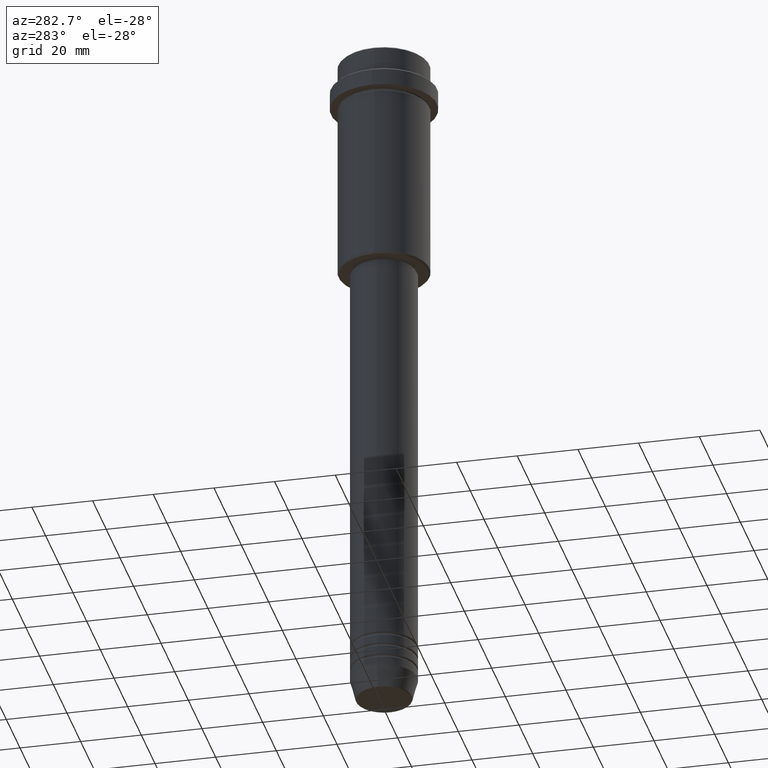
[diagram: clean part render]
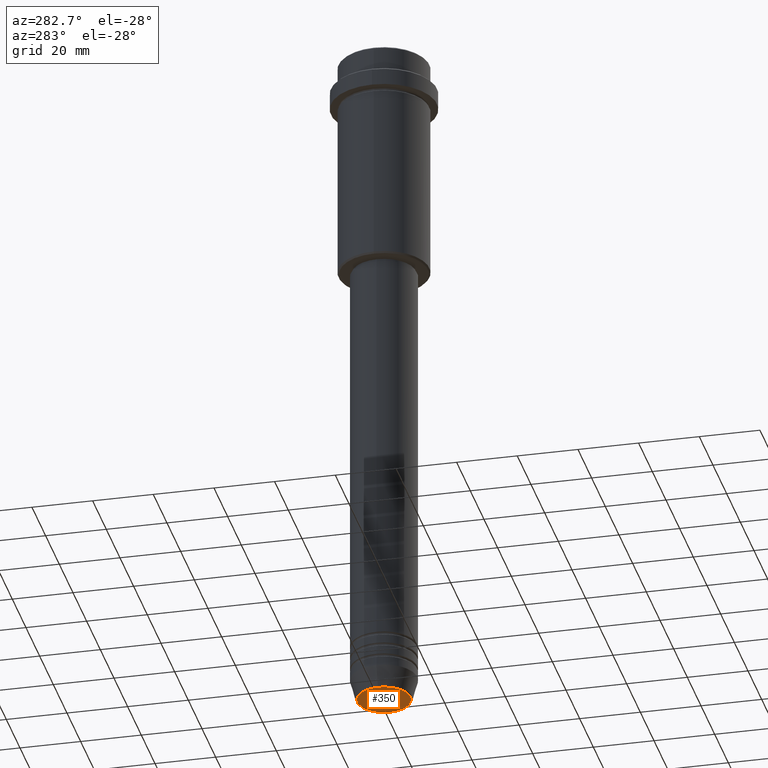
[diagram: same view with one face highlighted and labeled with its STEP entity id]
A machine part, auxiliary view. The second image highlights one B-rep face of the part: STEP entity #350.
In plain terms, the highlighted planar face has unit normal (0, -0, 1).
Its self-contained STEP definition (entity closure, byte-faithful):
#56 = AXIS2_PLACEMENT_3D ( 'NONE', #789, #371, #259 ) ;
#64 = DIRECTION ( 'NONE',  ( 1.000000000000000000, 0.000000000000000000, 0.000000000000000000 ) ) ;
#83 = CARTESIAN_POINT ( 'NONE',  ( 0.000000000000000000, 0.000000000000000000, -229.9999999999999716 ) ) ;
#102 = VERTEX_POINT ( 'NONE', #1118 ) ;
#133 = VERTEX_POINT ( 'NONE', #1383 ) ;
#172 = CARTESIAN_POINT ( 'NONE',  ( 0.000000000000000000, 0.000000000000000000, -229.9999999999999716 ) ) ;
#259 = DIRECTION ( 'NONE',  ( 1.000000000000000000, 0.000000000000000000, 0.000000000000000000 ) ) ;
#290 = DIRECTION ( 'NONE',  ( 0.000000000000000000, 0.000000000000000000, -1.000000000000000000 ) ) ;
#350 = ADVANCED_FACE ( 'NONE', ( #487 ), #358, .F. ) ;
#358 = PLANE ( 'NONE',  #56 ) ;
#371 = DIRECTION ( 'NONE',  ( 0.000000000000000000, -0.000000000000000000, 1.000000000000000000 ) ) ;
#388 = ORIENTED_EDGE ( 'NONE', *, *, #1323, .T. ) ;
#487 = FACE_OUTER_BOUND ( 'NONE', #719, .T. ) ;
#540 = AXIS2_PLACEMENT_3D ( 'NONE', #83, #1295, #1002 ) ;
#617 = AXIS2_PLACEMENT_3D ( 'NONE', #172, #290, #64 ) ;
#719 = EDGE_LOOP ( 'NONE', ( #1361, #388 ) ) ;
#774 = EDGE_CURVE ( 'NONE', #102, #133, #1178, .T. ) ;
#789 = CARTESIAN_POINT ( 'NONE',  ( 0.000000000000000000, 0.000000000000000000, -229.9999999999999716 ) ) ;
#1002 = DIRECTION ( 'NONE',  ( 1.000000000000000000, 0.000000000000000000, 0.000000000000000000 ) ) ;
#1118 = CARTESIAN_POINT ( 'NONE',  ( 8.740692158992656502, 0.000000000000000000, -229.9999999999999716 ) ) ;
#1178 = CIRCLE ( 'NONE', #617, 8.740692158992656502 ) ;
#1217 = CIRCLE ( 'NONE', #540, 8.740692158992656502 ) ;
#1295 = DIRECTION ( 'NONE',  ( 0.000000000000000000, 0.000000000000000000, -1.000000000000000000 ) ) ;
#1323 = EDGE_CURVE ( 'NONE', #133, #102, #1217, .T. ) ;
#1361 = ORIENTED_EDGE ( 'NONE', *, *, #774, .T. ) ;
#1383 = CARTESIAN_POINT ( 'NONE',  ( -8.740692158992656502, 1.099999016768739653E-15, -229.9999999999999716 ) ) ;